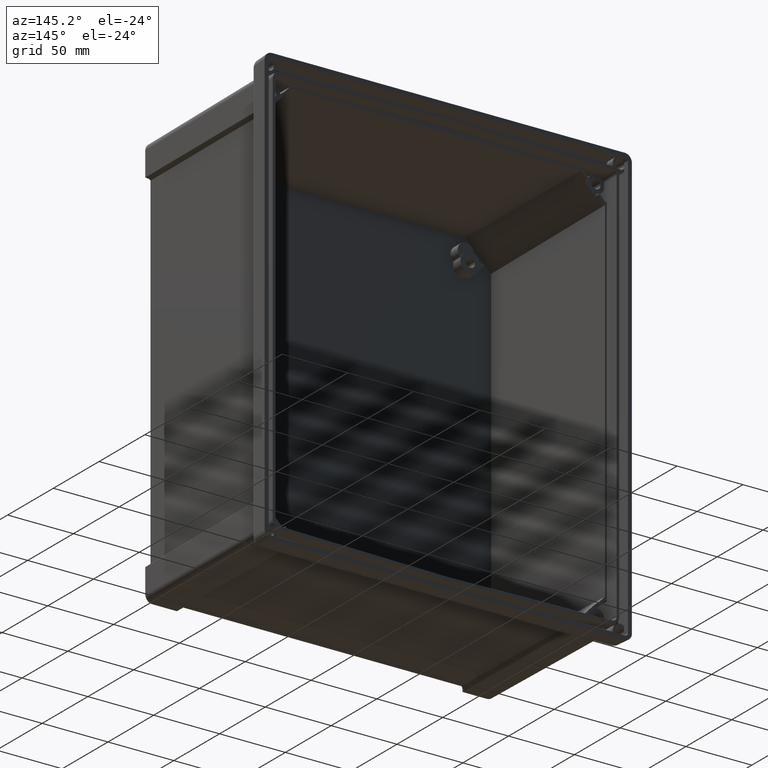
[diagram: clean part render]
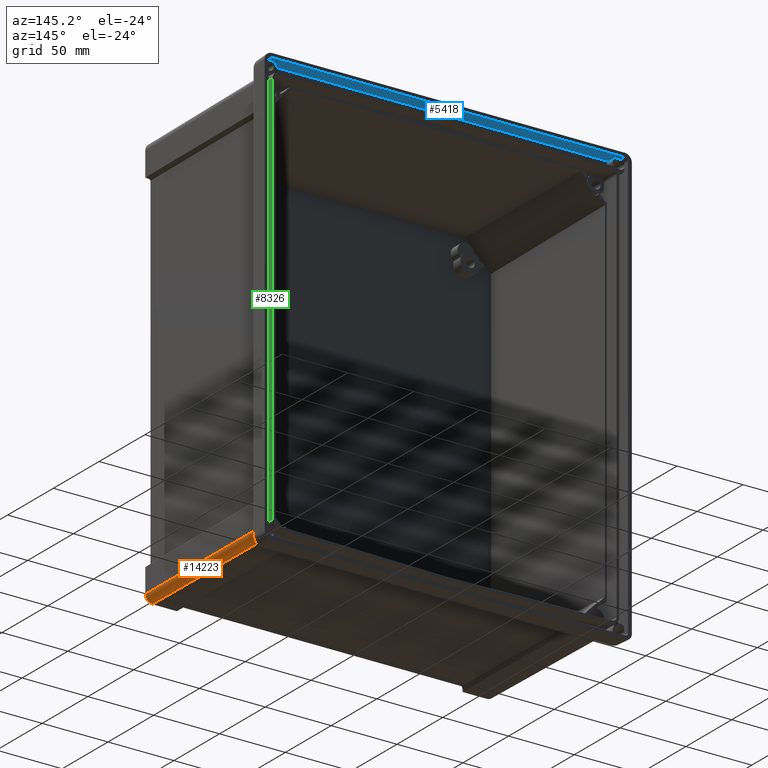
[diagram: same view with three faces highlighted in distinct colors, each labeled with its STEP entity id]
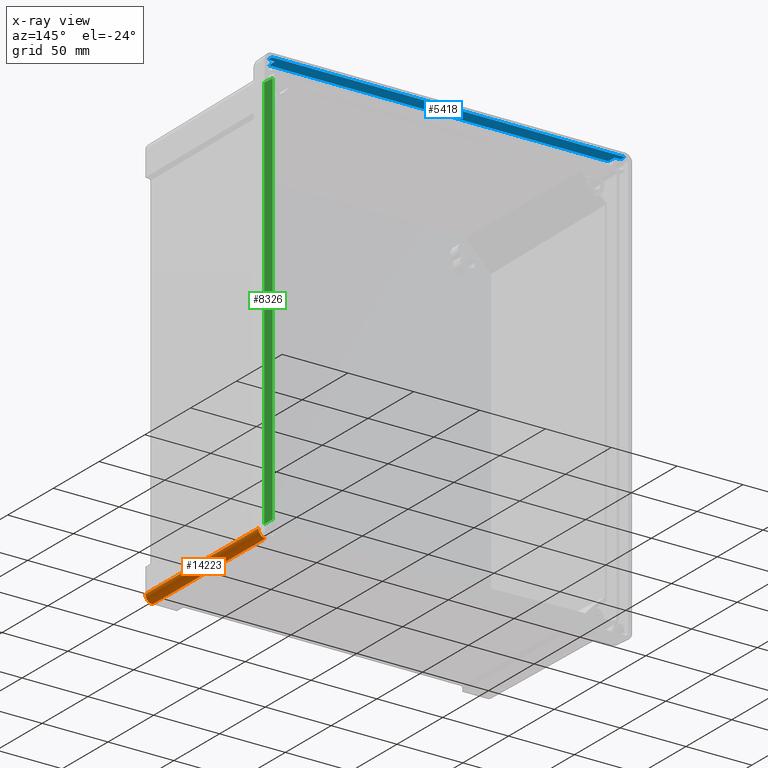
[diagram: x-ray of the same camera — body ghosted, the three highlighted faces saturated]
A machine part, auxiliary view with three faces highlighted in distinct colors.
The next image is the same camera in x-ray (body ghosted, the three faces saturated) — at least one of them is partly hidden behind the body in this view.
Their STEP definitions:

[orange] entity #14223 — the highlighted cylindrical surface (edge-blend (fillet) strip) has radius 5.5 mm, axis along (0.0087, 0.9999, -0.0087).
#109 = LINE ( 'NONE', #11380, #6431 ) ;
#942 = CARTESIAN_POINT ( 'NONE',  ( 127.0073698747316800, -140.5000000000000000, -157.0071604515844400 ) ) ;
#1009 = CARTESIAN_POINT ( 'NONE',  ( 133.0314545325559300, -15.25941638782639800, -155.0517711536116100 ) ) ;
#1156 = CARTESIAN_POINT ( 'NONE',  ( 132.5071604515846100, -140.5000000000000000, -151.5073698747315200 ) ) ;
#1218 = LINE ( 'NONE', #7162, #11230 ) ;
#1651 = VERTEX_POINT ( 'NONE', #11255 ) ;
#1801 = CARTESIAN_POINT ( 'NONE',  ( 133.6011417467239300, -15.14216012327059600, -152.6013511698708400 ) ) ;
#1909 = VERTEX_POINT ( 'NONE', #1801 ) ;
#2117 = CARTESIAN_POINT ( 'NONE',  ( 132.6024432093438200, -15.32138996488630100, -155.7700319386007400 ) ) ;
#2152 = CARTESIAN_POINT ( 'NONE',  ( 132.5071604515846100, -140.5000000000000000, -151.5073698747315200 ) ) ;
#2167 = CARTESIAN_POINT ( 'NONE',  ( 132.5071604515846100, -140.5000000000000000, -154.7291234140136600 ) ) ;
#2172 = CARTESIAN_POINT ( 'NONE',  ( 130.7592178523184400, -15.46778486444327200, -157.4198180578713700 ) ) ;
#2263 = CARTESIAN_POINT ( 'NONE',  ( 129.2035910054857800, -15.53489436256572500, -158.0141547914676000 ) ) ;
#3089 = EDGE_CURVE ( 'NONE', #15277, #1909, #1218, .T. ) ;
#3149 = CARTESIAN_POINT ( 'NONE',  ( 133.2479070755100800, -15.21724247044645800, -154.5382472688395100 ) ) ;
#4381 = DIRECTION ( 'NONE',  ( 0.008726203243944246800, 0.9999238504775704900, -0.008726203243944217300 ) ) ;
#5419 = CYLINDRICAL_SURFACE ( 'NONE', #14039, 5.500000000000002700 ) ;
#5455 = CARTESIAN_POINT ( 'NONE',  ( 128.1123582157462100, -13.83288164927847700, -152.6123582157460400 ) ) ;
#5681 = EDGE_CURVE ( 'NONE', #1651, #14659, #11243, .T. ) ;
#5791 = FACE_OUTER_BOUND ( 'NONE', #11858, .T. ) ;
#5901 = ORIENTED_EDGE ( 'NONE', *, *, #13932, .F. ) ;
#6182 = ORIENTED_EDGE ( 'NONE', *, *, #6595, .F. ) ;
#6431 = VECTOR ( 'NONE', #6494, 1000.000000000000100 ) ;
#6494 = DIRECTION ( 'NONE',  ( -0.008726203243944246800, -0.9999238504775704900, 0.008726203243944219100 ) ) ;
#6595 = EDGE_CURVE ( 'NONE', #1909, #14659, #10581, .T. ) ;
#6870 = CARTESIAN_POINT ( 'NONE',  ( 132.7581268811347000, -15.30102225274967900, -155.5371700272466500 ) ) ;
#6986 = CARTESIAN_POINT ( 'NONE',  ( 131.4540239782456900, -15.42668175834707300, -156.9655455875997600 ) ) ;
#7162 = CARTESIAN_POINT ( 'NONE',  ( 133.6121487925991300, -13.88087759451953200, -152.6123582157460400 ) ) ;
#7788 = CARTESIAN_POINT ( 'NONE',  ( 133.4821148381279000, -15.16746007370798700, -153.9176259772867200 ) ) ;
#8096 = CARTESIAN_POINT ( 'NONE',  ( 130.2622399457535200, -15.49161036990402700, -157.6620634252288700 ) ) ;
#8188 = CARTESIAN_POINT ( 'NONE',  ( 130.9976194354427400, -15.45499820470179500, -157.2805762455775500 ) ) ;
#8244 = CARTESIAN_POINT ( 'NONE',  ( 132.2617867430420800, -15.35956798487717000, -156.2049194952492100 ) ) ;
#8905 = EDGE_CURVE ( 'NONE', #1651, #10252, #109, .T. ) ;
#9270 = CARTESIAN_POINT ( 'NONE',  ( 130.2291234140138300, -140.5000000000000000, -157.0071604515844700 ) ) ;
#9274 = CARTESIAN_POINT ( 'NONE',  ( 128.0975329269510600, -15.57968742533357300, -158.0973235038037800 ) ) ;
#9798 =( BOUNDED_CURVE ( )  B_SPLINE_CURVE ( 3, ( #942, #9270, #2167, #1156 ),
 .UNSPECIFIED., .F., .F. ) 
 B_SPLINE_CURVE_WITH_KNOTS ( ( 4, 4 ),
 ( 5.497825219993078600, 7.068545394366090300 ),
 .UNSPECIFIED. ) 
 CURVE ( )  GEOMETRIC_REPRESENTATION_ITEM ( )  RATIONAL_B_SPLINE_CURVE ( ( 1.000000000000000000, 0.8047558030806129000, 0.8047558030806129000, 1.000000000000000000 ) ) 
 REPRESENTATION_ITEM ( '' )  );
#10252 = VERTEX_POINT ( 'NONE', #11098 ) ;
#10285 = CARTESIAN_POINT ( 'NONE',  ( 133.6011417467239500, -15.14216012327059600, -153.2649642378833100 ) ) ;
#10581 =( BOUNDED_CURVE ( )  B_SPLINE_CURVE ( 3, ( #15109, #10285, #7788, #3149 ),
 .UNSPECIFIED., .F., .T. ) 
 B_SPLINE_CURVE_WITH_KNOTS ( ( 4, 4 ),
 ( 6.243844256862544700, 6.603843504648580200 ),
 .UNSPECIFIED. ) 
 CURVE ( )  GEOMETRIC_REPRESENTATION_ITEM ( )  RATIONAL_B_SPLINE_CURVE ( ( 1.000000000000000000, 0.9892291734148829200, 0.9892291734148829200, 1.000000000000000000 ) ) 
 REPRESENTATION_ITEM ( '' )  );
#10612 = CARTESIAN_POINT ( 'NONE',  ( 132.0759358451909700, -15.37752586928049300, -156.4086403797057300 ) ) ;
#10779 = DIRECTION ( 'NONE',  ( 0.008726203243944246800, 0.9999238504775704900, -0.008726203243944219100 ) ) ;
#11098 = CARTESIAN_POINT ( 'NONE',  ( 127.0073698747316800, -140.5000000000000000, -157.0071604515844400 ) ) ;
#11230 = VECTOR ( 'NONE', #10779, 1000.000000000000100 ) ;
#11243 = B_SPLINE_CURVE_WITH_KNOTS ( 'NONE', 3,
 ( #9274, #13992, #2263, #11642, #8096, #2172, #8188, #6986, #14049, #10612, #8244, #2117, #6870, #1009, #11740, #12885 ),
 .UNSPECIFIED., .F., .F.,
 ( 4, 2, 2, 2, 2, 2, 2, 4 ),
 ( 0.0000000000000000000, 0.001657878926426370300, 0.002486818389639555400, 0.003315757852852740600, 0.004144697316065926200, 0.004973636779279110900, 0.005802576242492295600, 0.006631515705705481200 ),
 .UNSPECIFIED. ) ;
#11255 = CARTESIAN_POINT ( 'NONE',  ( 128.0975329269510600, -15.57968742533357300, -158.0973235038037800 ) ) ;
#11380 = CARTESIAN_POINT ( 'NONE',  ( 128.1121830785132000, -13.90094633363932400, -158.1119736553659200 ) ) ;
#11642 = CARTESIAN_POINT ( 'NONE',  ( 130.0015407683616800, -15.50272743885199700, -157.7656764623934300 ) ) ;
#11740 = CARTESIAN_POINT ( 'NONE',  ( 133.1492238040318300, -15.23821824732622000, -154.7997456014094300 ) ) ;
#11858 = EDGE_LOOP ( 'NONE', ( #5901, #11933, #12411, #6182, #14817 ) ) ;
#11933 = ORIENTED_EDGE ( 'NONE', *, *, #8905, .F. ) ;
#12411 = ORIENTED_EDGE ( 'NONE', *, *, #5681, .T. ) ;
#12885 = CARTESIAN_POINT ( 'NONE',  ( 133.2479070755100800, -15.21724247044645800, -154.5382472688395100 ) ) ;
#13819 = DIRECTION ( 'NONE',  ( -0.9999619230641713100, 0.008726535498374109900, 0.0000000000000000000 ) ) ;
#13932 = EDGE_CURVE ( 'NONE', #10252, #15277, #9798, .T. ) ;
#13992 = CARTESIAN_POINT ( 'NONE',  ( 128.6575568659820900, -15.55444775862734600, -158.0975437670381900 ) ) ;
#14039 = AXIS2_PLACEMENT_3D ( 'NONE', #5455, #4381, #13819 ) ;
#14049 = CARTESIAN_POINT ( 'NONE',  ( 131.6729720297168500, -15.41103800971607300, -156.7884558297585000 ) ) ;
#14223 = ADVANCED_FACE ( 'NONE', ( #5791 ), #5419, .T. ) ;
#14659 = VERTEX_POINT ( 'NONE', #14833 ) ;
#14817 = ORIENTED_EDGE ( 'NONE', *, *, #3089, .F. ) ;
#14833 = CARTESIAN_POINT ( 'NONE',  ( 133.2479070755100800, -15.21724247044645800, -154.5382472688395100 ) ) ;
#15109 = CARTESIAN_POINT ( 'NONE',  ( 133.6011417467239300, -15.14216012327059600, -152.6013511698708400 ) ) ;
#15277 = VERTEX_POINT ( 'NONE', #2152 ) ;

[blue] entity #5418 — the highlighted planar face has unit normal (0, -0.0349, 0.9994).
#25 = FACE_OUTER_BOUND ( 'NONE', #9342, .T. ) ;
#693 = EDGE_CURVE ( 'NONE', #8147, #2689, #10870, .T. ) ;
#989 = VERTEX_POINT ( 'NONE', #7236 ) ;
#991 = EDGE_CURVE ( 'NONE', #8099, #2689, #12689, .T. ) ;
#1053 = LINE ( 'NONE', #2732, #5334 ) ;
#1432 = CARTESIAN_POINT ( 'NONE',  ( 133.6341977761848600, -9.420466775269829900, 162.9326748437325400 ) ) ;
#1932 = LINE ( 'NONE', #3550, #15107 ) ;
#2100 = EDGE_CURVE ( 'NONE', #12432, #13048, #1932, .T. ) ;
#2110 = VERTEX_POINT ( 'NONE', #8247 ) ;
#2193 = EDGE_CURVE ( 'NONE', #989, #8147, #4343, .T. ) ;
#2278 = DIRECTION ( 'NONE',  ( 1.000000000000000000, 0.0000000000000000000, 0.0000000000000000000 ) ) ;
#2363 = CARTESIAN_POINT ( 'NONE',  ( 128.8877662474738500, -8.264811679594009400, 162.9730312089406300 ) ) ;
#2398 = CARTESIAN_POINT ( 'NONE',  ( -129.1109912613666200, -4.000000000000000000, 163.1219617145294500 ) ) ;
#2689 = VERTEX_POINT ( 'NONE', #6227 ) ;
#2732 = CARTESIAN_POINT ( 'NONE',  ( -139.4634734253929500, -4.000000000000000000, 163.1219617145294500 ) ) ;
#3550 = CARTESIAN_POINT ( 'NONE',  ( -139.4634734253929500, 0.0000000000000000000, 163.2616447924964400 ) ) ;
#4142 = DIRECTION ( 'NONE',  ( 0.03487826274237469700, -0.9987827659587182900, -0.03487826274237469000 ) ) ;
#4166 = EDGE_CURVE ( 'NONE', #13048, #2110, #8817, .T. ) ;
#4306 = PLANE ( 'NONE',  #11777 ) ;
#4343 =( BOUNDED_CURVE ( )  B_SPLINE_CURVE ( 3, ( #2398, #10717, #5974, #15248 ),
 .UNSPECIFIED., .F., .F. ) 
 B_SPLINE_CURVE_WITH_KNOTS ( ( 4, 4 ),
 ( 3.654112486816969900, 3.699928779801928200 ),
 .UNSPECIFIED. ) 
 CURVE ( )  GEOMETRIC_REPRESENTATION_ITEM ( )  RATIONAL_B_SPLINE_CURVE ( ( 1.000000000000000000, 0.9998250799245531600, 0.9998250799245531600, 1.000000000000000000 ) ) 
 REPRESENTATION_ITEM ( '' )  );
#4859 = CARTESIAN_POINT ( 'NONE',  ( 128.9986399876635500, -6.090135739354370700, 163.0489725661690000 ) ) ;
#5206 = ORIENTED_EDGE ( 'NONE', *, *, #693, .F. ) ;
#5334 = VECTOR ( 'NONE', #13290, 1000.000000000000000 ) ;
#5418 = ADVANCED_FACE ( 'NONE', ( #25 ), #4306, .F. ) ;
#5974 = CARTESIAN_POINT ( 'NONE',  ( -128.8877662474738500, -8.264811679594517500, 162.9730312089405700 ) ) ;
#5998 = CARTESIAN_POINT ( 'NONE',  ( -139.4634734253929500, -10.52288663728131000, 162.8941774938481300 ) ) ;
#6191 = ORIENTED_EDGE ( 'NONE', *, *, #7468, .F. ) ;
#6227 = CARTESIAN_POINT ( 'NONE',  ( 128.7784282229265800, -10.52288663728131000, 162.8941774938481300 ) ) ;
#6688 = CARTESIAN_POINT ( 'NONE',  ( -139.4634734253929500, 0.1046984901075031500, 163.2653009443356200 ) ) ;
#7026 = CARTESIAN_POINT ( 'NONE',  ( 128.7784282229265800, -10.52288663728131000, 162.8941774938481300 ) ) ;
#7236 = CARTESIAN_POINT ( 'NONE',  ( -129.1109912613666200, -4.000000000000000000, 163.1219617145294500 ) ) ;
#7468 = EDGE_CURVE ( 'NONE', #8099, #12897, #10754, .T. ) ;
#7912 = DIRECTION ( 'NONE',  ( 0.0000000000000000000, -0.03489949670250105200, 0.9993908270190957600 ) ) ;
#8099 = VERTEX_POINT ( 'NONE', #15408 ) ;
#8147 = VERTEX_POINT ( 'NONE', #13045 ) ;
#8234 = ORIENTED_EDGE ( 'NONE', *, *, #10665, .F. ) ;
#8247 = CARTESIAN_POINT ( 'NONE',  ( -133.8234846469817700, -4.000000000000000000, 163.1219617145294500 ) ) ;
#8708 = EDGE_CURVE ( 'NONE', #12897, #12432, #10363, .T. ) ;
#8817 = LINE ( 'NONE', #13541, #14364 ) ;
#9094 = DIRECTION ( 'NONE',  ( 0.0000000000000000000, -0.9993908270190956500, -0.03489949670250104600 ) ) ;
#9342 = EDGE_LOOP ( 'NONE', ( #6191, #15459, #5206, #10576, #8234, #9823, #15414, #9553 ) ) ;
#9486 = CARTESIAN_POINT ( 'NONE',  ( 129.1109912613665900, -4.000000000000016000, 163.1219617145294500 ) ) ;
#9553 = ORIENTED_EDGE ( 'NONE', *, *, #8708, .F. ) ;
#9823 = ORIENTED_EDGE ( 'NONE', *, *, #4166, .F. ) ;
#10338 = CARTESIAN_POINT ( 'NONE',  ( -139.4634734253929500, -4.000000000000000000, 163.1219617145294500 ) ) ;
#10363 = LINE ( 'NONE', #1432, #14076 ) ;
#10502 = VECTOR ( 'NONE', #2278, 1000.000000000000000 ) ;
#10576 = ORIENTED_EDGE ( 'NONE', *, *, #2193, .F. ) ;
#10665 = EDGE_CURVE ( 'NONE', #2110, #989, #1053, .T. ) ;
#10668 = DIRECTION ( 'NONE',  ( -1.000000000000000000, -0.0000000000000000000, -0.0000000000000000000 ) ) ;
#10717 = CARTESIAN_POINT ( 'NONE',  ( -128.9986399876635500, -6.090135739354493300, 163.0489725661689700 ) ) ;
#10754 = LINE ( 'NONE', #10338, #12783 ) ;
#10870 = LINE ( 'NONE', #5998, #10502 ) ;
#11585 = CARTESIAN_POINT ( 'NONE',  ( -133.9631677249487300, 0.0000000000000000000, 163.2616447924964100 ) ) ;
#11777 = AXIS2_PLACEMENT_3D ( 'NONE', #6688, #7912, #9094 ) ;
#12361 = CARTESIAN_POINT ( 'NONE',  ( 133.8234846469817100, -4.000000000000000000, 163.1219617145294200 ) ) ;
#12432 = VERTEX_POINT ( 'NONE', #15312 ) ;
#12689 =( BOUNDED_CURVE ( )  B_SPLINE_CURVE ( 3, ( #9486, #4859, #2363, #7026 ),
 .UNSPECIFIED., .F., .F. ) 
 B_SPLINE_CURVE_WITH_KNOTS ( ( 4, 4 ),
 ( 3.654112486816972500, 3.699928779801922500 ),
 .UNSPECIFIED. ) 
 CURVE ( )  GEOMETRIC_REPRESENTATION_ITEM ( )  RATIONAL_B_SPLINE_CURVE ( ( 1.000000000000000000, 0.9998250799245532700, 0.9998250799245532700, 1.000000000000000000 ) ) 
 REPRESENTATION_ITEM ( '' )  );
#12709 = DIRECTION ( 'NONE',  ( 1.000000000000000000, -0.0000000000000000000, -0.0000000000000000000 ) ) ;
#12783 = VECTOR ( 'NONE', #12709, 1000.000000000000000 ) ;
#12897 = VERTEX_POINT ( 'NONE', #12361 ) ;
#13045 = CARTESIAN_POINT ( 'NONE',  ( -128.7784282229265200, -10.52288663728131000, 162.8941774938481300 ) ) ;
#13048 = VERTEX_POINT ( 'NONE', #11585 ) ;
#13290 = DIRECTION ( 'NONE',  ( 1.000000000000000000, -0.0000000000000000000, -0.0000000000000000000 ) ) ;
#13303 = DIRECTION ( 'NONE',  ( 0.03487826274237469700, 0.9987827659587182900, 0.03487826274237469000 ) ) ;
#13541 = CARTESIAN_POINT ( 'NONE',  ( -133.9735105136521400, 0.2961787169620386800, 163.2719875811998200 ) ) ;
#14076 = VECTOR ( 'NONE', #13303, 1000.000000000000000 ) ;
#14364 = VECTOR ( 'NONE', #4142, 1000.000000000000000 ) ;
#15107 = VECTOR ( 'NONE', #10668, 1000.000000000000000 ) ;
#15248 = CARTESIAN_POINT ( 'NONE',  ( -128.7784282229265200, -10.52288663728131000, 162.8941774938481300 ) ) ;
#15312 = CARTESIAN_POINT ( 'NONE',  ( 133.9631677249487000, 0.0000000000000000000, 163.2616447924964100 ) ) ;
#15408 = CARTESIAN_POINT ( 'NONE',  ( 129.1109912613665900, -4.000000000000016000, 163.1219617145294500 ) ) ;
#15414 = ORIENTED_EDGE ( 'NONE', *, *, #2100, .F. ) ;
#15459 = ORIENTED_EDGE ( 'NONE', *, *, #991, .T. ) ;

[green] entity #8326 — the highlighted planar face has unit normal (0.9994, 0.0349, 0).
#789 = DIRECTION ( 'NONE',  ( -0.03487899055459543800, 0.9988036077738137200, 0.03427548855823894100 ) ) ;
#1320 = CARTESIAN_POINT ( 'NONE',  ( 131.6293091952614700, -3.000000000000000000, 158.5253760172065000 ) ) ;
#1459 = EDGE_CURVE ( 'NONE', #7219, #5826, #4927, .T. ) ;
#2204 = ORIENTED_EDGE ( 'NONE', *, *, #1459, .T. ) ;
#3394 = VECTOR ( 'NONE', #4952, 1000.000000000000000 ) ;
#3587 = DIRECTION ( 'NONE',  ( -0.03489949670250104600, 0.9993908270190956500, 0.0000000000000000000 ) ) ;
#4509 = LINE ( 'NONE', #9119, #13211 ) ;
#4927 = LINE ( 'NONE', #14989, #10851 ) ;
#4952 = DIRECTION ( 'NONE',  ( -9.011550524554844400E-017, 0.0000000000000000000, 1.000000000000000000 ) ) ;
#5251 = VERTEX_POINT ( 'NONE', #14957 ) ;
#5826 = VERTEX_POINT ( 'NONE', #8848 ) ;
#6321 = EDGE_LOOP ( 'NONE', ( #9108, #8744, #9390, #2204 ) ) ;
#7219 = VERTEX_POINT ( 'NONE', #9541 ) ;
#7286 = DIRECTION ( 'NONE',  ( 0.9993908270190957600, 0.03489949670250105200, 9.006060931459230300E-017 ) ) ;
#7894 = DIRECTION ( 'NONE',  ( 0.03487899055459543800, -0.9988036077738137200, 0.03427548855823896200 ) ) ;
#7921 = VECTOR ( 'NONE', #789, 1000.000000000000100 ) ;
#8326 = ADVANCED_FACE ( 'NONE', ( #8898 ), #10761, .T. ) ;
#8422 = LINE ( 'NONE', #11988, #3394 ) ;
#8744 = ORIENTED_EDGE ( 'NONE', *, *, #11868, .T. ) ;
#8848 = CARTESIAN_POINT ( 'NONE',  ( 131.9229755106754900, -11.40950298885566600, 150.8524371429377900 ) ) ;
#8898 = FACE_OUTER_BOUND ( 'NONE', #6321, .T. ) ;
#9108 = ORIENTED_EDGE ( 'NONE', *, *, #13716, .T. ) ;
#9119 = CARTESIAN_POINT ( 'NONE',  ( 131.9229755106754900, -11.40950298885566600, 158.5253760172065000 ) ) ;
#9390 = ORIENTED_EDGE ( 'NONE', *, *, #13953, .T. ) ;
#9541 = CARTESIAN_POINT ( 'NONE',  ( 131.6118488105156000, -2.500000000000000000, 150.5466937862084400 ) ) ;
#10150 = DIRECTION ( 'NONE',  ( 8.945153879246630300E-017, 1.901351152181897500E-017, -1.000000000000000000 ) ) ;
#10685 = LINE ( 'NONE', #12467, #7921 ) ;
#10761 = PLANE ( 'NONE',  #14508 ) ;
#10851 = VECTOR ( 'NONE', #7894, 1000.000000000000100 ) ;
#11868 = EDGE_CURVE ( 'NONE', #11898, #5251, #10685, .T. ) ;
#11898 = VERTEX_POINT ( 'NONE', #12528 ) ;
#11988 = CARTESIAN_POINT ( 'NONE',  ( 131.6118488105156000, -2.500000000000000000, 158.5253760172065000 ) ) ;
#12467 = CARTESIAN_POINT ( 'NONE',  ( 131.2597947411147700, 7.581509500644405500, -150.2007312157394700 ) ) ;
#12528 = CARTESIAN_POINT ( 'NONE',  ( 131.9229755106755100, -11.40950298885566000, -150.8524371429377300 ) ) ;
#13211 = VECTOR ( 'NONE', #10150, 1000.000000000000000 ) ;
#13716 = EDGE_CURVE ( 'NONE', #5826, #11898, #4509, .T. ) ;
#13953 = EDGE_CURVE ( 'NONE', #5251, #7219, #8422, .T. ) ;
#14508 = AXIS2_PLACEMENT_3D ( 'NONE', #1320, #7286, #3587 ) ;
#14957 = CARTESIAN_POINT ( 'NONE',  ( 131.6118488105156200, -2.500000000000000000, -150.5466937862083200 ) ) ;
#14989 = CARTESIAN_POINT ( 'NONE',  ( 131.6388271529013700, -3.272558645712186900, 150.5732053294343600 ) ) ;